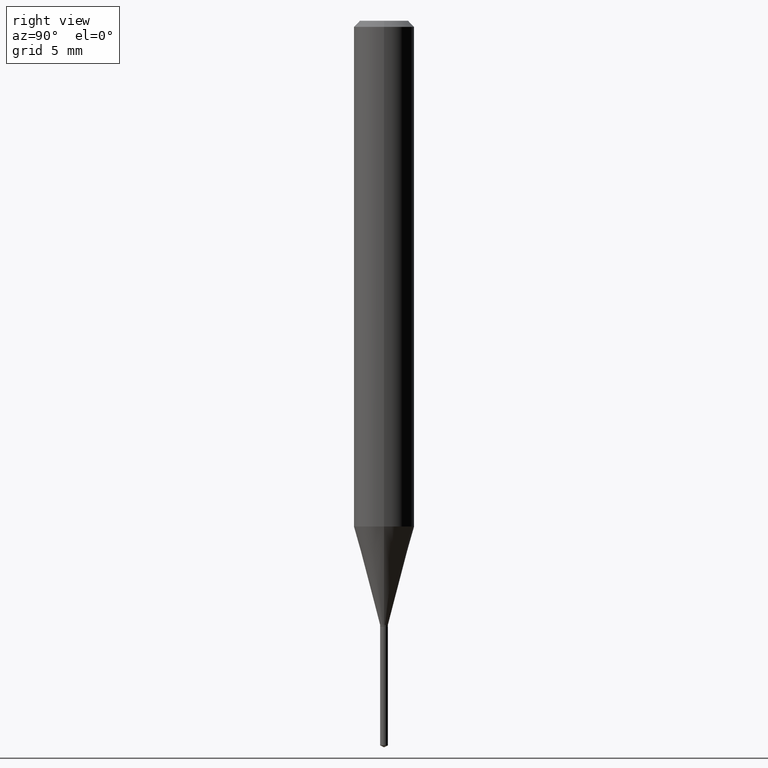
[diagram: clean part render]
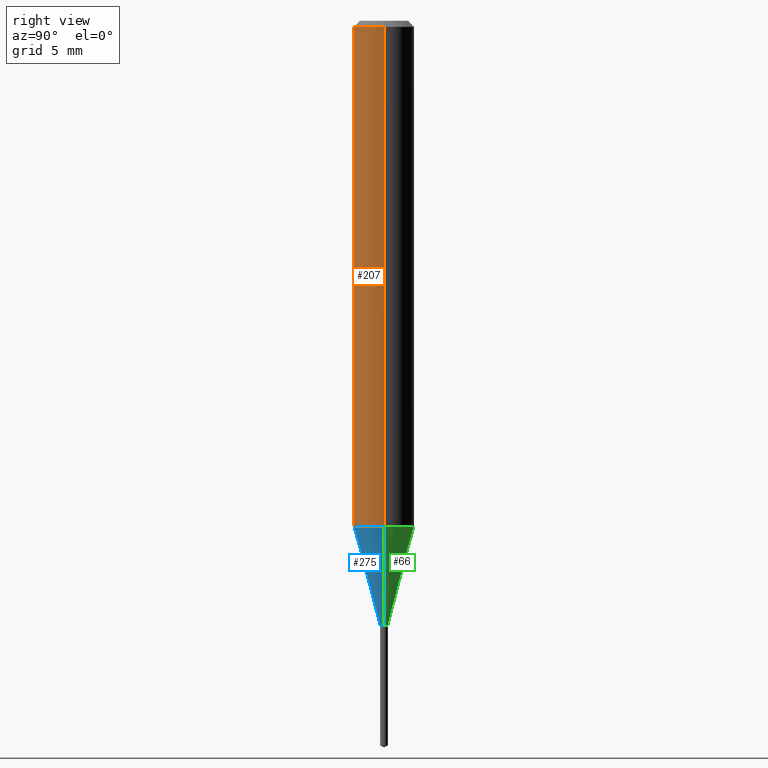
[diagram: same view with three faces highlighted in distinct colors, each labeled with its STEP entity id]
A machine part, right view with three faces highlighted in distinct colors.
Their STEP definitions:

[orange] entity #207 — the highlighted cylindrical surface (edge-blend (fillet) strip) has radius 1.5875 mm, axis along (-0, 0, 1).
#25 = DIRECTION ( 'NONE',  ( -2.445468806185136597E-29, 3.491481338843145583E-15, 1.000000000000000000 ) ) ;
#36 = CARTESIAN_POINT ( 'NONE',  ( 2.553566428697655198E-29, -3.645816094952562303E-15, -1.044203230987496234 ) ) ;
#38 = DIRECTION ( 'NONE',  ( 1.000000000000000000, -6.982962677686266711E-15, 0.000000000000000000 ) ) ;
#64 = CARTESIAN_POINT ( 'NONE',  ( 0.000000000000000000, 0.000000000000000000, 0.000000000000000000 ) ) ;
#69 = VECTOR ( 'NONE', #147, 39.37007874015748143 ) ;
#77 = AXIS2_PLACEMENT_3D ( 'NONE', #36, #176, #225 ) ;
#82 = ORIENTED_EDGE ( 'NONE', *, *, #435, .T. ) ;
#84 = EDGE_CURVE ( 'NONE', #286, #204, #165, .T. ) ;
#147 = DIRECTION ( 'NONE',  ( -2.445468806185136877E-29, 3.491481338843145188E-15, 1.000000000000000000 ) ) ;
#165 = CIRCLE ( 'NONE', #77, 0.06250000000000013878 ) ;
#176 = DIRECTION ( 'NONE',  ( -2.445468806185136597E-29, 3.491481338843145583E-15, 1.000000000000000000 ) ) ;
#178 = LINE ( 'NONE', #374, #261 ) ;
#191 = ORIENTED_EDGE ( 'NONE', *, *, #448, .F. ) ;
#197 = CIRCLE ( 'NONE', #396, 0.06250000000000000000 ) ;
#204 = VERTEX_POINT ( 'NONE', #489 ) ;
#207 = ADVANCED_FACE ( 'NONE', ( #373 ), #300, .T. ) ;
#225 = DIRECTION ( 'NONE',  ( 1.000000000000000000, -6.982962677686270655E-15, 0.000000000000000000 ) ) ;
#243 = EDGE_LOOP ( 'NONE', ( #191, #343, #82, #471 ) ) ;
#261 = VECTOR ( 'NONE', #337, 39.37007874015748143 ) ;
#264 = CARTESIAN_POINT ( 'NONE',  ( 3.056836007731441415E-31, -4.364351673553961684E-17, -0.01250000000000008396 ) ) ;
#270 = CARTESIAN_POINT ( 'NONE',  ( -0.06250000000000013878, -3.201726885102498109E-15, -1.044203230987496234 ) ) ;
#286 = VERTEX_POINT ( 'NONE', #270 ) ;
#289 = DIRECTION ( 'NONE',  ( 1.000000000000000000, -6.982962677686266711E-15, 4.876176775795935793E-29 ) ) ;
#300 = CYLINDRICAL_SURFACE ( 'NONE', #409, 0.06250000000000006939 ) ;
#302 = LINE ( 'NONE', #451, #69 ) ;
#327 = VERTEX_POINT ( 'NONE', #421 ) ;
#330 = EDGE_CURVE ( 'NONE', #327, #349, #197, .T. ) ;
#337 = DIRECTION ( 'NONE',  ( -2.445468806185136877E-29, 3.491481338843145188E-15, 1.000000000000000000 ) ) ;
#343 = ORIENTED_EDGE ( 'NONE', *, *, #84, .T. ) ;
#349 = VERTEX_POINT ( 'NONE', #351 ) ;
#351 = CARTESIAN_POINT ( 'NONE',  ( 0.06250000000000000000, -4.800786840909313294E-16, -0.01250000000000008396 ) ) ;
#373 = FACE_OUTER_BOUND ( 'NONE', #243, .T. ) ;
#374 = CARTESIAN_POINT ( 'NONE',  ( -0.06250000000000006939, 4.440892098500631092E-16, -3.074334431409319267E-30 ) ) ;
#379 = DIRECTION ( 'NONE',  ( -2.445468806185136597E-29, 3.491481338843145583E-15, 1.000000000000000000 ) ) ;
#396 = AXIS2_PLACEMENT_3D ( 'NONE', #264, #379, #38 ) ;
#409 = AXIS2_PLACEMENT_3D ( 'NONE', #64, #25, #289 ) ;
#421 = CARTESIAN_POINT ( 'NONE',  ( -0.06250000000000000000, -1.400640595993986935E-15, -0.01250000000000008396 ) ) ;
#435 = EDGE_CURVE ( 'NONE', #204, #349, #302, .T. ) ;
#448 = EDGE_CURVE ( 'NONE', #286, #327, #178, .T. ) ;
#451 = CARTESIAN_POINT ( 'NONE',  ( 0.06250000000000006939, -4.364351673553921624E-16, 3.047610484872463374E-30 ) ) ;
#471 = ORIENTED_EDGE ( 'NONE', *, *, #330, .F. ) ;
#489 = CARTESIAN_POINT ( 'NONE',  ( 0.06250000000000013878, -4.082251262307954761E-15, -1.044203230987496234 ) ) ;

[blue] entity #275 — the highlighted conical surface has half-angle 15 deg.
#2 = DIRECTION ( 'NONE',  ( -2.445468806185136597E-29, 3.491481338843145583E-15, 1.000000000000000000 ) ) ;
#10 = VERTEX_POINT ( 'NONE', #22 ) ;
#22 = CARTESIAN_POINT ( 'NONE',  ( -0.008000000000000010575, -4.302445606751801651E-15, -1.247600000000000042 ) ) ;
#36 = CARTESIAN_POINT ( 'NONE',  ( 2.553566428697655198E-29, -3.645816094952562303E-15, -1.044203230987496234 ) ) ;
#37 = AXIS2_PLACEMENT_3D ( 'NONE', #190, #2, #125 ) ;
#77 = AXIS2_PLACEMENT_3D ( 'NONE', #36, #176, #225 ) ;
#84 = EDGE_CURVE ( 'NONE', #286, #204, #165, .T. ) ;
#90 = EDGE_LOOP ( 'NONE', ( #321, #95, #390, #210 ) ) ;
#95 = ORIENTED_EDGE ( 'NONE', *, *, #170, .T. ) ;
#105 = DIRECTION ( 'NONE',  ( 0.2588190451025212391, 1.565188264969622362E-15, 0.9659258262890679791 ) ) ;
#117 = FACE_OUTER_BOUND ( 'NONE', #90, .T. ) ;
#125 = DIRECTION ( 'NONE',  ( 1.000000000000000000, -6.982962677686324297E-15, 0.000000000000000000 ) ) ;
#135 = VERTEX_POINT ( 'NONE', #148 ) ;
#142 = CARTESIAN_POINT ( 'NONE',  ( 0.008000000000000010575, -4.411835819762199735E-15, -1.247600000000000042 ) ) ;
#148 = CARTESIAN_POINT ( 'NONE',  ( 0.008000000000000010575, -4.411835819762199735E-15, -1.247600000000000042 ) ) ;
#165 = CIRCLE ( 'NONE', #77, 0.06250000000000013878 ) ;
#170 = EDGE_CURVE ( 'NONE', #10, #135, #474, .T. ) ;
#176 = DIRECTION ( 'NONE',  ( -2.445468806185136597E-29, 3.491481338843145583E-15, 1.000000000000000000 ) ) ;
#190 = CARTESIAN_POINT ( 'NONE',  ( 3.050966882596576644E-29, -4.355972118340708465E-15, -1.247600000000000042 ) ) ;
#204 = VERTEX_POINT ( 'NONE', #489 ) ;
#205 = CONICAL_SURFACE ( 'NONE', #37, 0.008000000000000010575, 0.2617993877991499629 ) ;
#210 = ORIENTED_EDGE ( 'NONE', *, *, #84, .F. ) ;
#215 = EDGE_CURVE ( 'NONE', #135, #204, #480, .T. ) ;
#216 = CARTESIAN_POINT ( 'NONE',  ( -0.008000000000000010575, -4.299128699479900400E-15, -1.247600000000000042 ) ) ;
#225 = DIRECTION ( 'NONE',  ( 1.000000000000000000, -6.982962677686270655E-15, 0.000000000000000000 ) ) ;
#245 = VECTOR ( 'NONE', #367, 39.37007874015748854 ) ;
#255 = LINE ( 'NONE', #216, #245 ) ;
#259 = CARTESIAN_POINT ( 'NONE',  ( 3.050966882596576644E-29, -4.355972118340708465E-15, -1.247600000000000042 ) ) ;
#270 = CARTESIAN_POINT ( 'NONE',  ( -0.06250000000000013878, -3.201726885102498109E-15, -1.044203230987496234 ) ) ;
#275 = ADVANCED_FACE ( 'NONE', ( #117 ), #205, .T. ) ;
#286 = VERTEX_POINT ( 'NONE', #270 ) ;
#321 = ORIENTED_EDGE ( 'NONE', *, *, #454, .F. ) ;
#339 = VECTOR ( 'NONE', #105, 39.37007874015748854 ) ;
#365 = DIRECTION ( 'NONE',  ( 1.000000000000000000, -6.982962677686324297E-15, 0.000000000000000000 ) ) ;
#367 = DIRECTION ( 'NONE',  ( -0.2588190451025212391, 5.211531920934549464E-15, 0.9659258262890679791 ) ) ;
#372 = AXIS2_PLACEMENT_3D ( 'NONE', #259, #405, #365 ) ;
#390 = ORIENTED_EDGE ( 'NONE', *, *, #215, .T. ) ;
#405 = DIRECTION ( 'NONE',  ( -2.445468806185136597E-29, 3.491481338843145583E-15, 1.000000000000000000 ) ) ;
#454 = EDGE_CURVE ( 'NONE', #10, #286, #255, .T. ) ;
#474 = CIRCLE ( 'NONE', #372, 0.008000000000000010575 ) ;
#480 = LINE ( 'NONE', #142, #339 ) ;
#489 = CARTESIAN_POINT ( 'NONE',  ( 0.06250000000000013878, -4.082251262307954761E-15, -1.044203230987496234 ) ) ;

[green] entity #66 — the highlighted conical surface has half-angle 15 deg.
#10 = VERTEX_POINT ( 'NONE', #22 ) ;
#22 = CARTESIAN_POINT ( 'NONE',  ( -0.008000000000000010575, -4.302445606751801651E-15, -1.247600000000000042 ) ) ;
#27 = FACE_OUTER_BOUND ( 'NONE', #163, .T. ) ;
#30 = CIRCLE ( 'NONE', #436, 0.008000000000000010575 ) ;
#59 = EDGE_CURVE ( 'NONE', #204, #286, #388, .T. ) ;
#66 = ADVANCED_FACE ( 'NONE', ( #27 ), #99, .T. ) ;
#81 = DIRECTION ( 'NONE',  ( -2.445468806185136597E-29, 3.491481338843145583E-15, 1.000000000000000000 ) ) ;
#98 = DIRECTION ( 'NONE',  ( -2.445468806185136597E-29, 3.491481338843145583E-15, 1.000000000000000000 ) ) ;
#99 = CONICAL_SURFACE ( 'NONE', #380, 0.008000000000000010575, 0.2617993877991499629 ) ;
#105 = DIRECTION ( 'NONE',  ( 0.2588190451025212391, 1.565188264969622362E-15, 0.9659258262890679791 ) ) ;
#135 = VERTEX_POINT ( 'NONE', #148 ) ;
#142 = CARTESIAN_POINT ( 'NONE',  ( 0.008000000000000010575, -4.411835819762199735E-15, -1.247600000000000042 ) ) ;
#148 = CARTESIAN_POINT ( 'NONE',  ( 0.008000000000000010575, -4.411835819762199735E-15, -1.247600000000000042 ) ) ;
#154 = CARTESIAN_POINT ( 'NONE',  ( 3.050966882596576644E-29, -4.355972118340708465E-15, -1.247600000000000042 ) ) ;
#163 = EDGE_LOOP ( 'NONE', ( #425, #431, #169, #308 ) ) ;
#169 = ORIENTED_EDGE ( 'NONE', *, *, #59, .F. ) ;
#180 = CARTESIAN_POINT ( 'NONE',  ( 3.050966882596576644E-29, -4.355972118340708465E-15, -1.247600000000000042 ) ) ;
#204 = VERTEX_POINT ( 'NONE', #489 ) ;
#215 = EDGE_CURVE ( 'NONE', #135, #204, #480, .T. ) ;
#216 = CARTESIAN_POINT ( 'NONE',  ( -0.008000000000000010575, -4.299128699479900400E-15, -1.247600000000000042 ) ) ;
#223 = DIRECTION ( 'NONE',  ( 1.000000000000000000, -6.982962677686324297E-15, 0.000000000000000000 ) ) ;
#235 = DIRECTION ( 'NONE',  ( 1.000000000000000000, -6.982962677686324297E-15, 0.000000000000000000 ) ) ;
#245 = VECTOR ( 'NONE', #367, 39.37007874015748854 ) ;
#255 = LINE ( 'NONE', #216, #245 ) ;
#270 = CARTESIAN_POINT ( 'NONE',  ( -0.06250000000000013878, -3.201726885102498109E-15, -1.044203230987496234 ) ) ;
#286 = VERTEX_POINT ( 'NONE', #270 ) ;
#306 = EDGE_CURVE ( 'NONE', #135, #10, #30, .T. ) ;
#308 = ORIENTED_EDGE ( 'NONE', *, *, #215, .F. ) ;
#339 = VECTOR ( 'NONE', #105, 39.37007874015748854 ) ;
#367 = DIRECTION ( 'NONE',  ( -0.2588190451025212391, 5.211531920934549464E-15, 0.9659258262890679791 ) ) ;
#371 = AXIS2_PLACEMENT_3D ( 'NONE', #476, #450, #413 ) ;
#380 = AXIS2_PLACEMENT_3D ( 'NONE', #180, #98, #223 ) ;
#388 = CIRCLE ( 'NONE', #371, 0.06250000000000013878 ) ;
#413 = DIRECTION ( 'NONE',  ( 1.000000000000000000, -6.982962677686270655E-15, 0.000000000000000000 ) ) ;
#425 = ORIENTED_EDGE ( 'NONE', *, *, #306, .T. ) ;
#431 = ORIENTED_EDGE ( 'NONE', *, *, #454, .T. ) ;
#436 = AXIS2_PLACEMENT_3D ( 'NONE', #154, #81, #235 ) ;
#450 = DIRECTION ( 'NONE',  ( -2.445468806185136597E-29, 3.491481338843145583E-15, 1.000000000000000000 ) ) ;
#454 = EDGE_CURVE ( 'NONE', #10, #286, #255, .T. ) ;
#476 = CARTESIAN_POINT ( 'NONE',  ( 2.553566428697655198E-29, -3.645816094952562303E-15, -1.044203230987496234 ) ) ;
#480 = LINE ( 'NONE', #142, #339 ) ;
#489 = CARTESIAN_POINT ( 'NONE',  ( 0.06250000000000013878, -4.082251262307954761E-15, -1.044203230987496234 ) ) ;